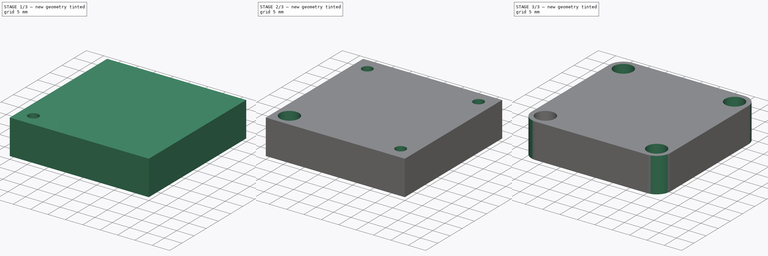
[diagram: build sequence overview — one tinted view per stage of 3, left to right]
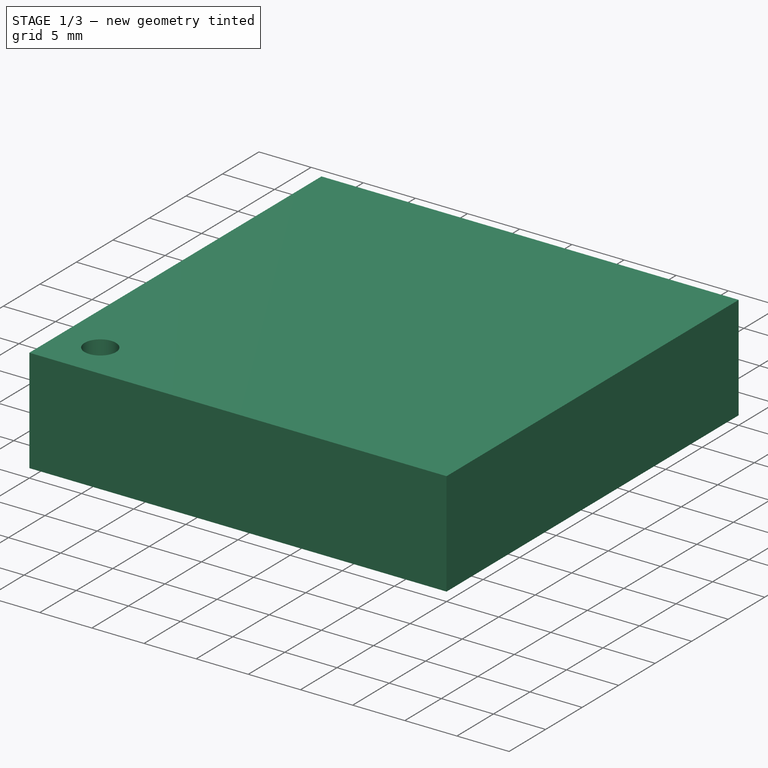
[diagram: stage 1 of 3 — iso view after this stage's code; geometry added in this stage tinted green]
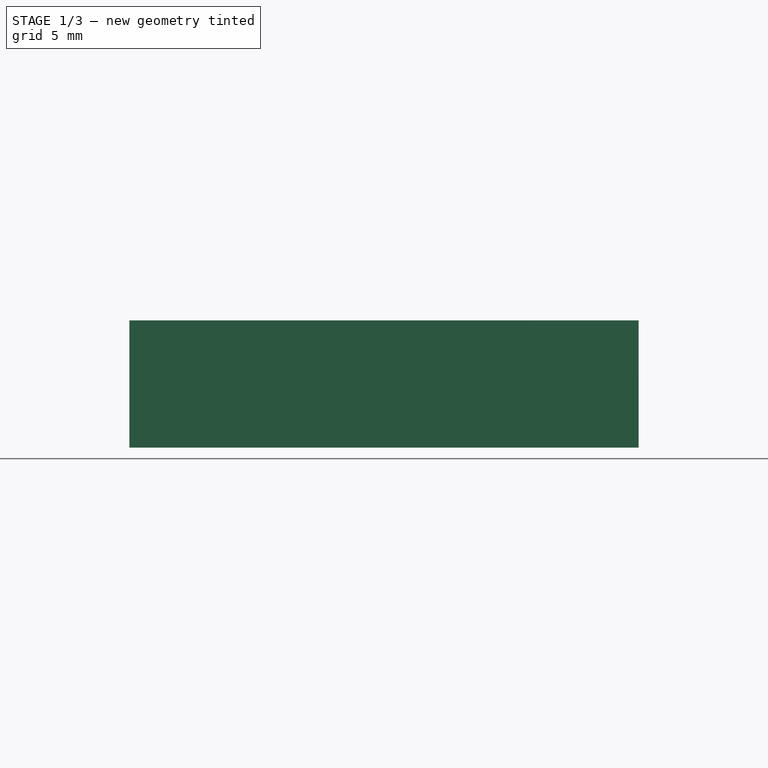
[diagram: stage 1 of 3 — front view after this stage's code; geometry added in this stage tinted green]
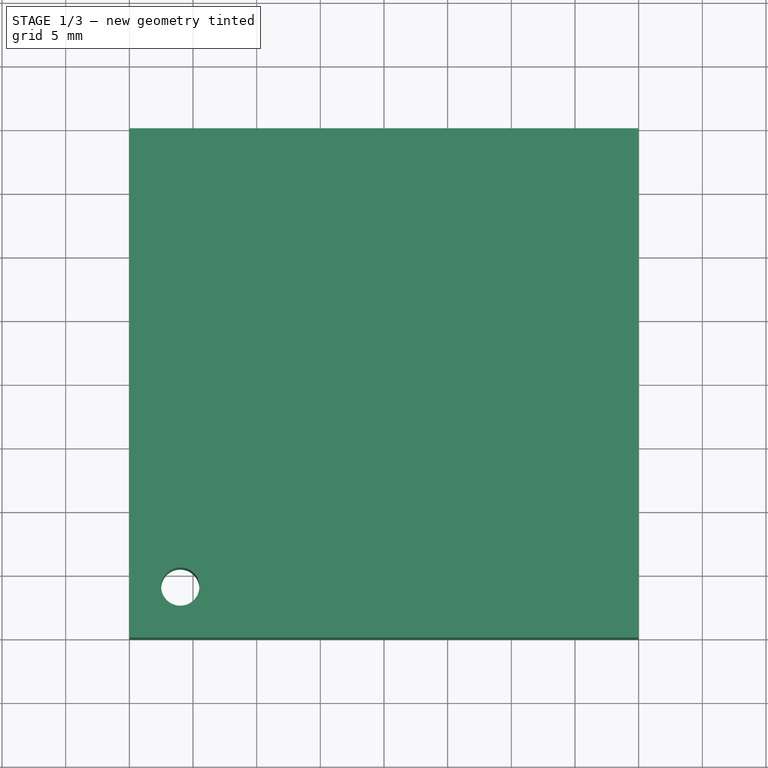
[diagram: stage 1 of 3 — top view after this stage's code; geometry added in this stage tinted green]
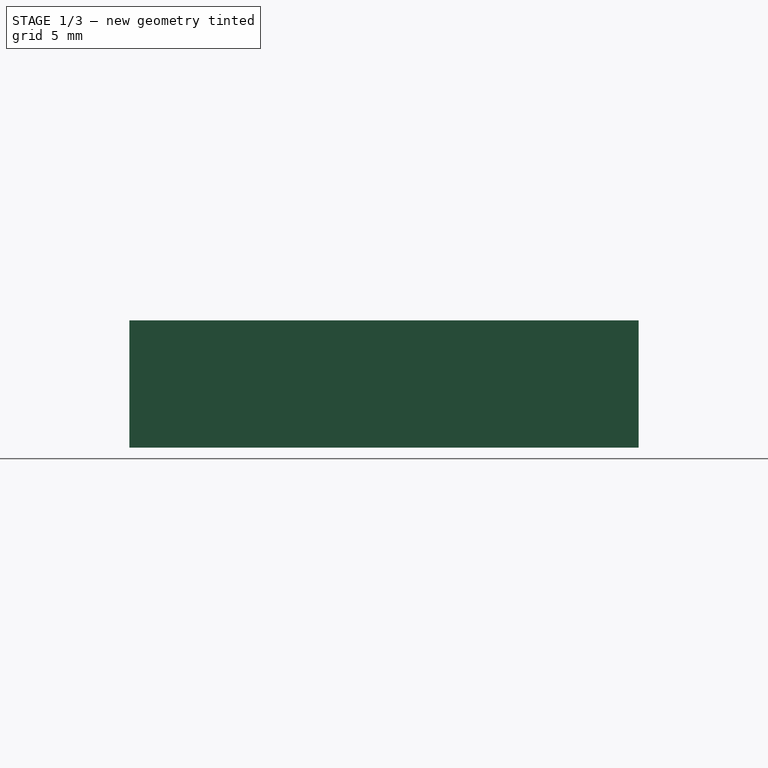
[diagram: stage 1 of 3 — right view after this stage's code; geometry added in this stage tinted green]
FCSTD DOCUMENT  (FreeCAD 0.14R3692 (Git))
Label: fans
License: CC-BY 3.0
LicenseURL: http://creativecommons.org/licenses/by/3.0/
objects: PartDesign::LinearPattern×4, Sketcher::SketchObject×2, PartDesign::Pocket×2, PartDesign::MultiTransform×2, Part::Box×1, PartDesign::Fillet×1, Part::Feature×1
note: 15 computed .brp shape members not serialized (recipe doc carries the construction recipe); baked Part::Feature solids carry a one-line shape summary decoded from their .brp

FEATURE [Part::Box] Box  label="body-cube"
  Height = 10
  Length = 40
  Width = 40
FEATURE [Sketcher::SketchObject] Sketch  label="mounting-screw-hole-sketch"
  Placement = pos=(0,0,10) rot=(0,0,1;0rad)
  Support = -> Box [Face6]
  sketch-geometry (1):
    g0: Circle CenterX=4 CenterY=4 CenterZ=0 NormalX=0 NormalY=0 NormalZ=1 Radius=1.5
  constraints (3):
    c: Radius(g0) = 1.5
    c: DistanceY(g-1,g0) = 4
    c: DistanceX(g-1,g0) = 4
FEATURE [PartDesign::Pocket] Pocket  label="mounting-screw-hole-pocket"
  Length = 10
  Sketch = -> Sketch
  Type = 0
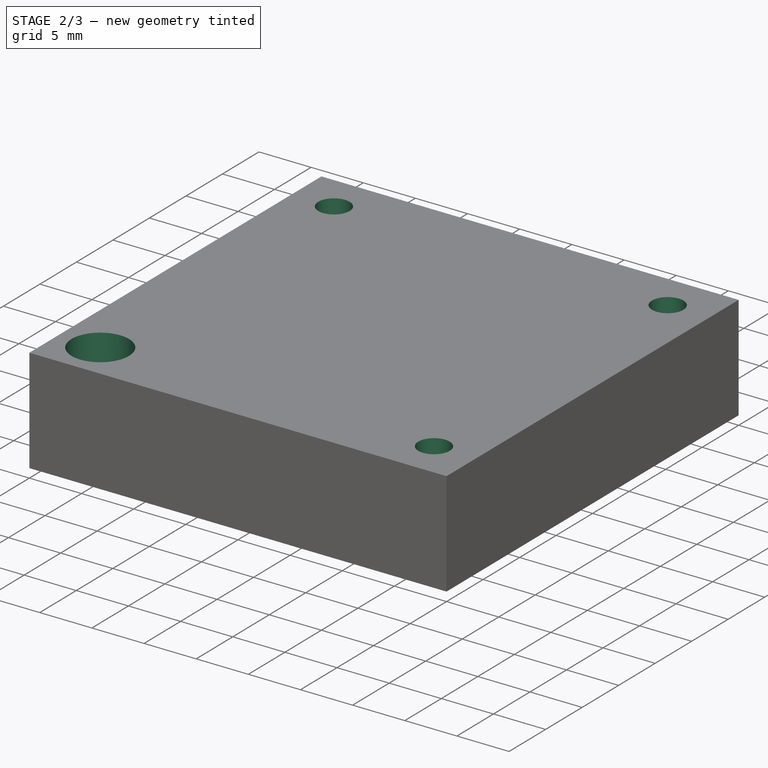
[diagram: stage 2 of 3 — iso view after this stage's code; geometry added in this stage tinted green]
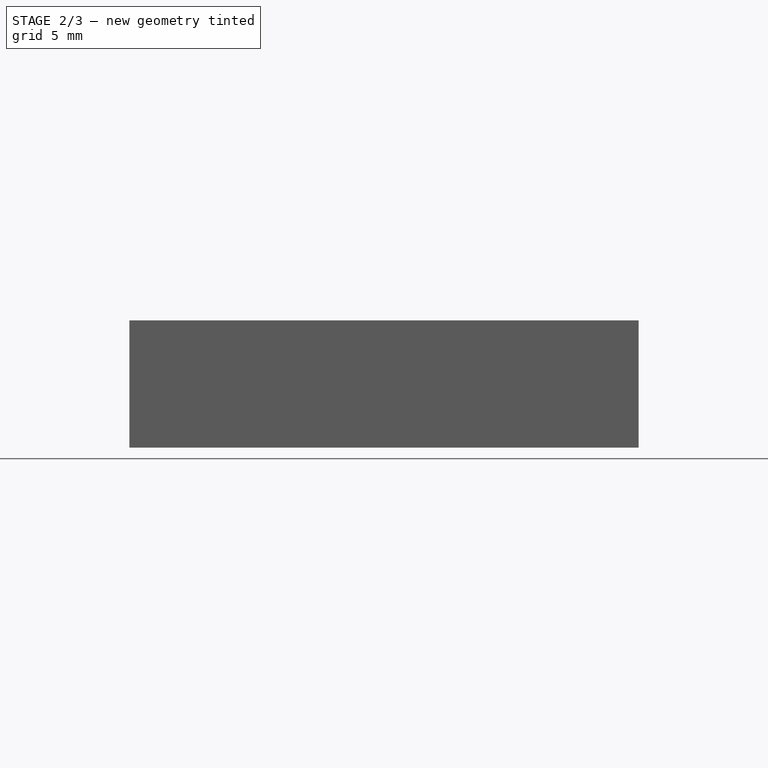
[diagram: stage 2 of 3 — front view after this stage's code; geometry added in this stage tinted green]
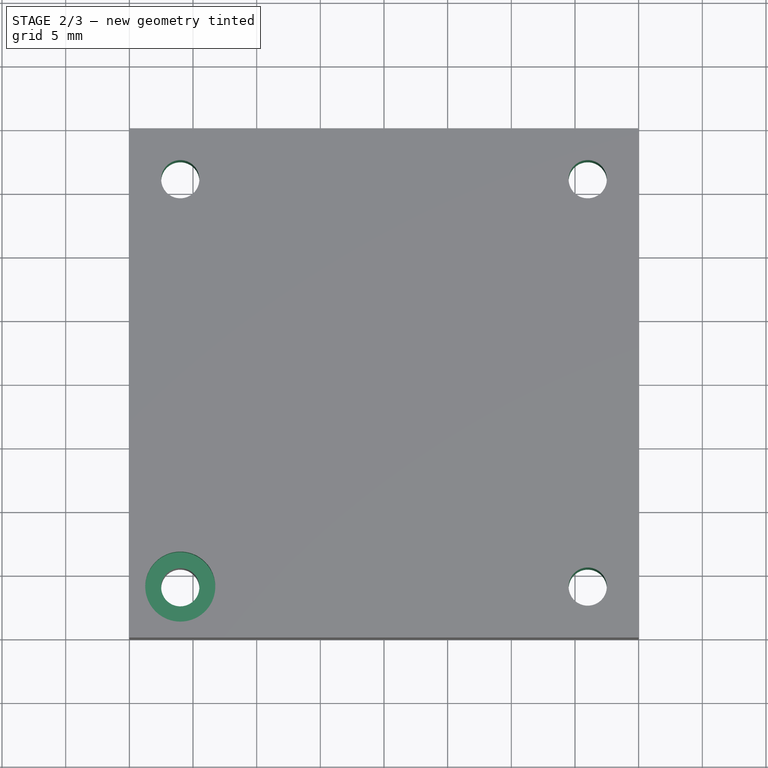
[diagram: stage 2 of 3 — top view after this stage's code; geometry added in this stage tinted green]
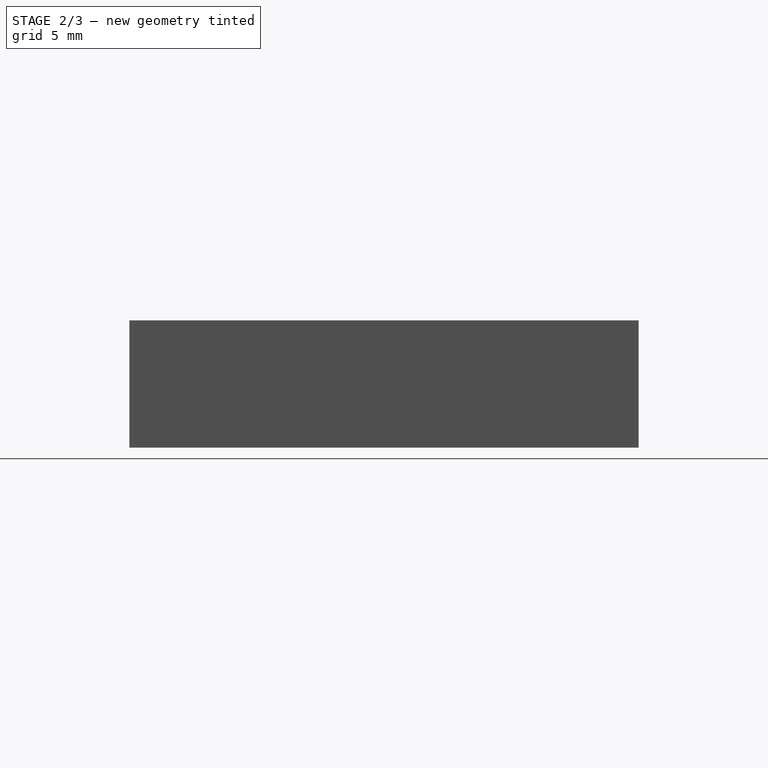
[diagram: stage 2 of 3 — right view after this stage's code; geometry added in this stage tinted green]
FEATURE [PartDesign::LinearPattern] LinearPattern  label="mounting-screw-holes-bottom"
  Direction = -> Sketch [H_Axis]
  Length = 32
  Occurrences = 2
FEATURE [PartDesign::LinearPattern] LinearPattern001  label="mounting-screw-holes-top"
  Direction = -> Sketch [V_Axis]
  Length = 32
  Occurrences = 2
FEATURE [PartDesign::MultiTransform] MultiTransform  label="mounting-screw-holes"
  Originals = -> [Pocket]
  Transformations = -> [LinearPattern,LinearPattern001]
FEATURE [Sketcher::SketchObject] Sketch001  label="mounting-head-hole-sketch"
  Placement = pos=(0,0,10) rot=(0,0,1;0rad)
  Support = -> MultiTransform [Face3]
  sketch-geometry (1):
    g0: Circle CenterX=4 CenterY=4 CenterZ=0 NormalX=0 NormalY=0 NormalZ=1 Radius=2.75
  constraints (3):
    c: Radius(g0) = 2.75
    c: DistanceX(g-1,g0) = 4
    c: DistanceY(g-1,g0) = 4
FEATURE [PartDesign::Pocket] Pocket001  label="mounting-head-hole-pocket"
  Length = 3
  Sketch = -> Sketch001
  Type = 0
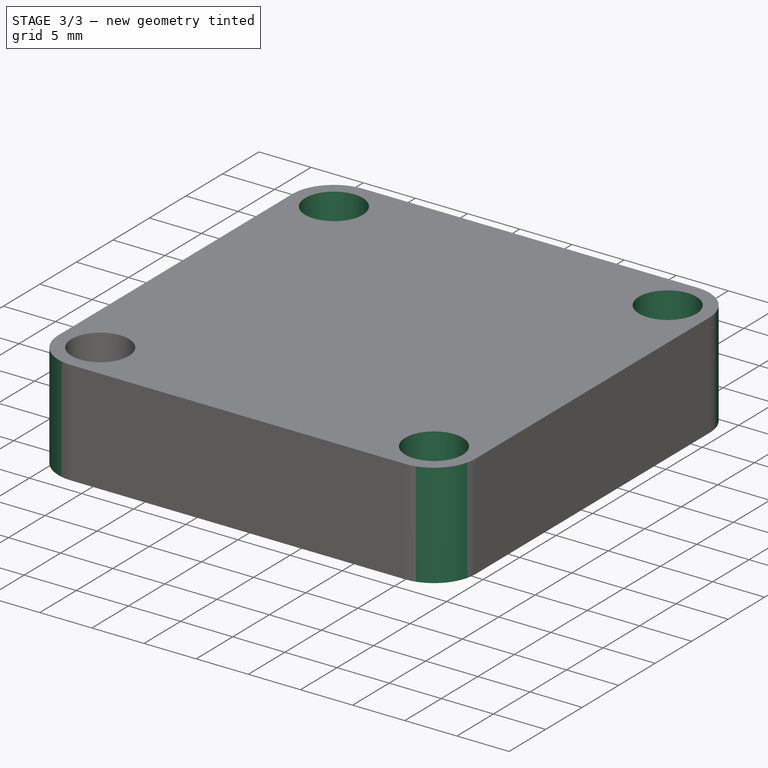
[diagram: stage 3 of 3 — iso view after this stage's code; geometry added in this stage tinted green]
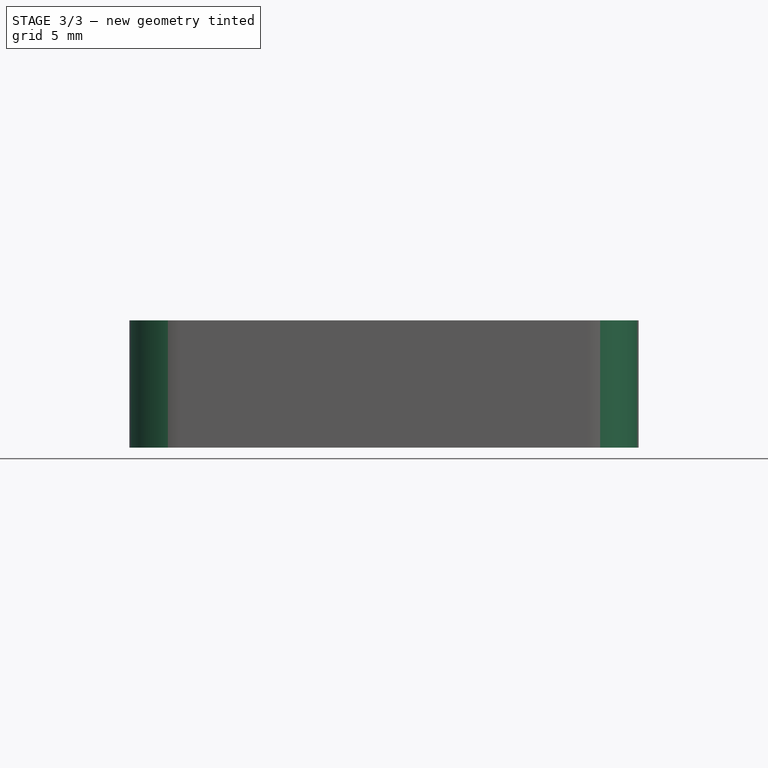
[diagram: stage 3 of 3 — front view after this stage's code; geometry added in this stage tinted green]
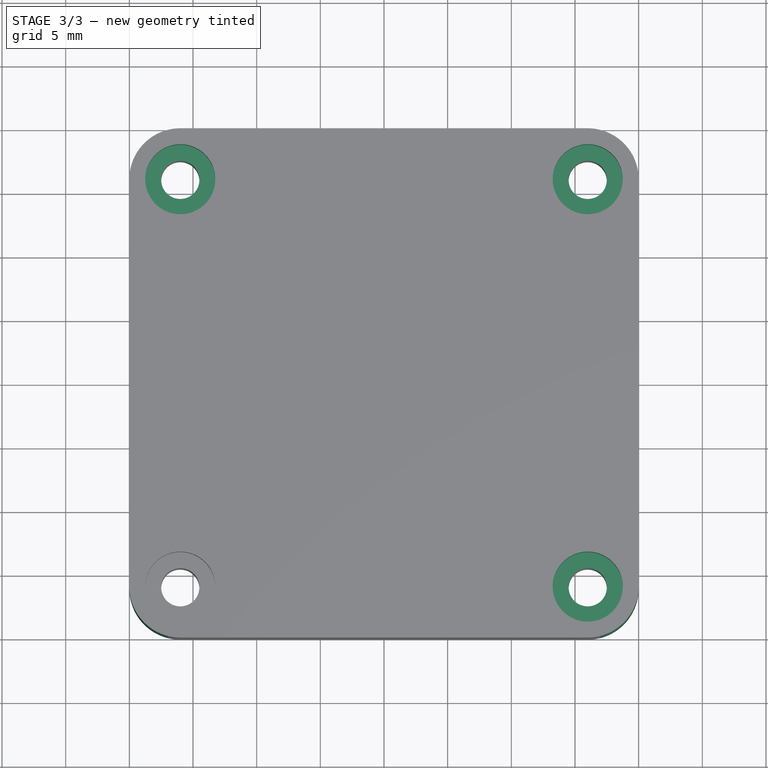
[diagram: stage 3 of 3 — top view after this stage's code; geometry added in this stage tinted green]
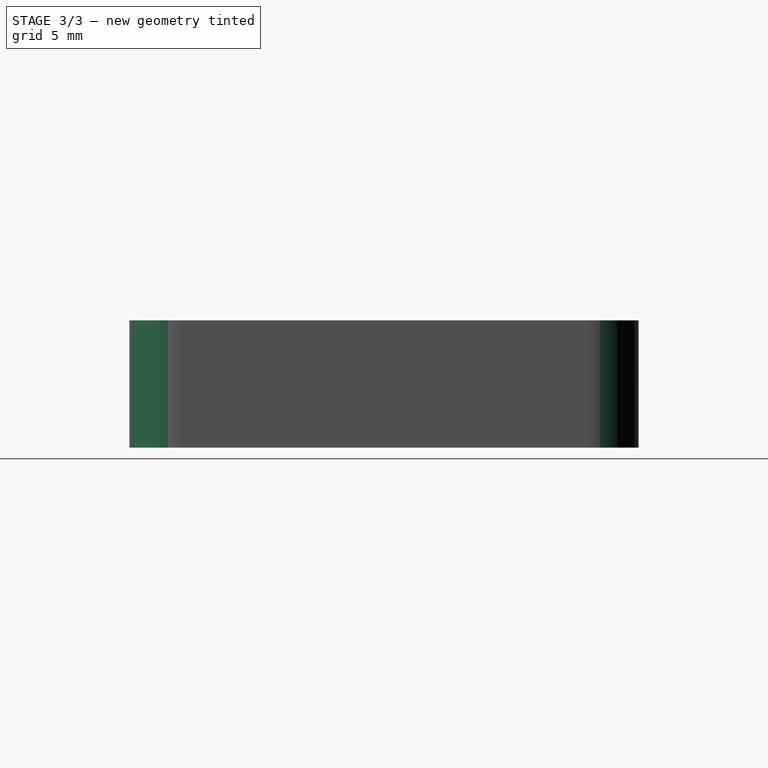
[diagram: stage 3 of 3 — right view after this stage's code; geometry added in this stage tinted green]
FEATURE [PartDesign::LinearPattern] LinearPattern002  label="mounting-head-holes-bottom"
  Direction = -> Sketch001 [H_Axis]
  Length = 32
  Occurrences = 2
FEATURE [PartDesign::LinearPattern] LinearPattern003  label="mounting-head-holes-top"
  Direction = -> Sketch001 [V_Axis]
  Length = 32
  Occurrences = 2
FEATURE [PartDesign::MultiTransform] MultiTransform001  label="mounting-head-holes"
  Originals = -> [Pocket001]
  Transformations = -> [LinearPattern002,LinearPattern003]
FEATURE [PartDesign::Fillet] Fillet  label="corners-fillet"
  Base = -> MultiTransform001 [Edge1,Edge6,Edge15,Edge3]
  Radius = 4
FEATURE [Part::Feature] Fillet001  label="fan-40x40x10"
  shape: bbox 40 x 40 x 10 mm, 22 faces (baked)
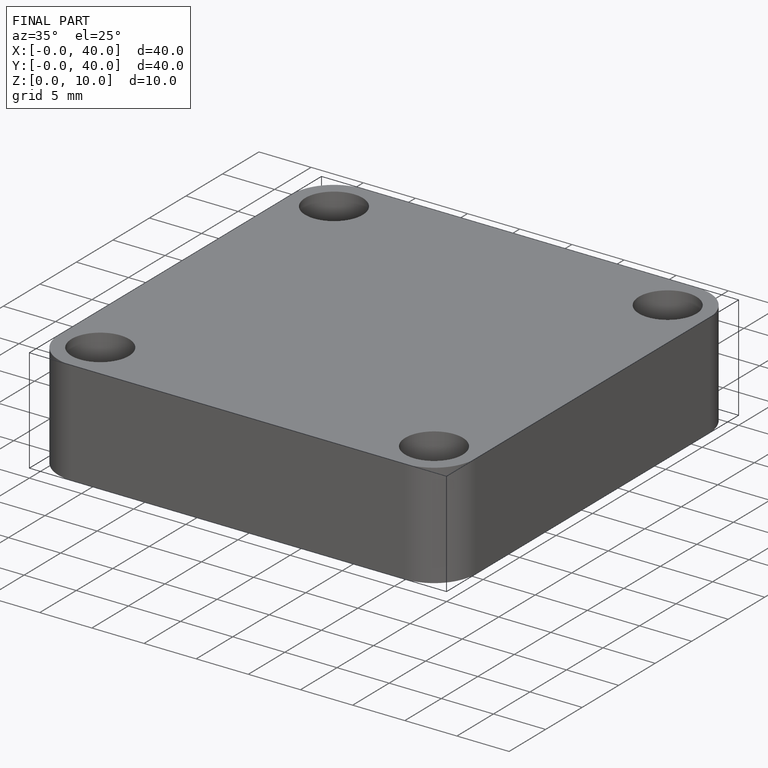
[diagram: finished part — iso view with bounding-box wireframe]
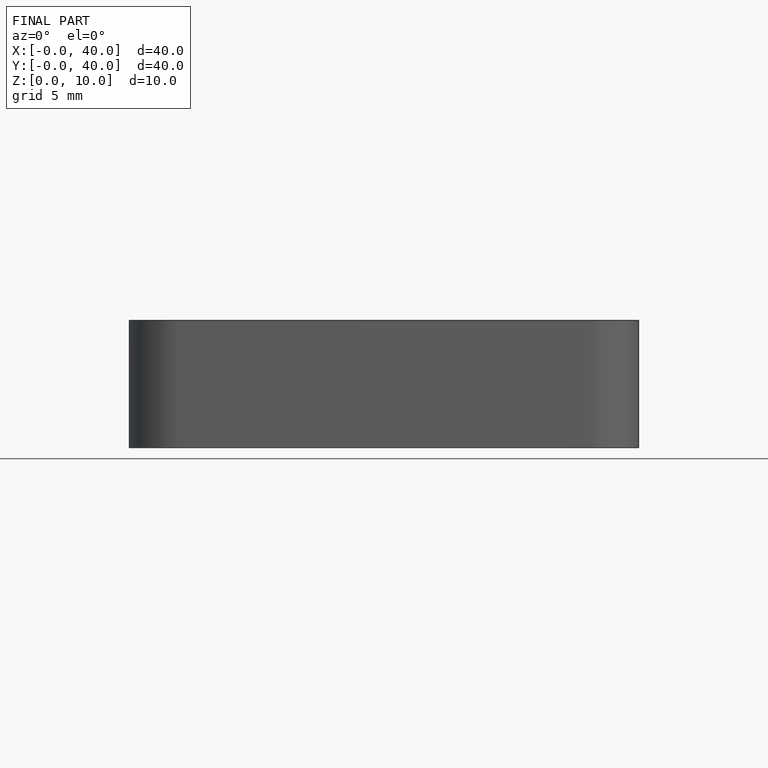
[diagram: finished part — front view with bounding-box wireframe]
